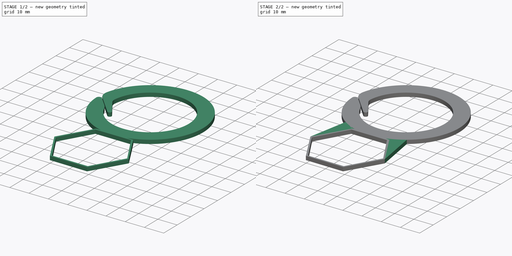
[diagram: build sequence overview — one tinted view per stage of 2, left to right]
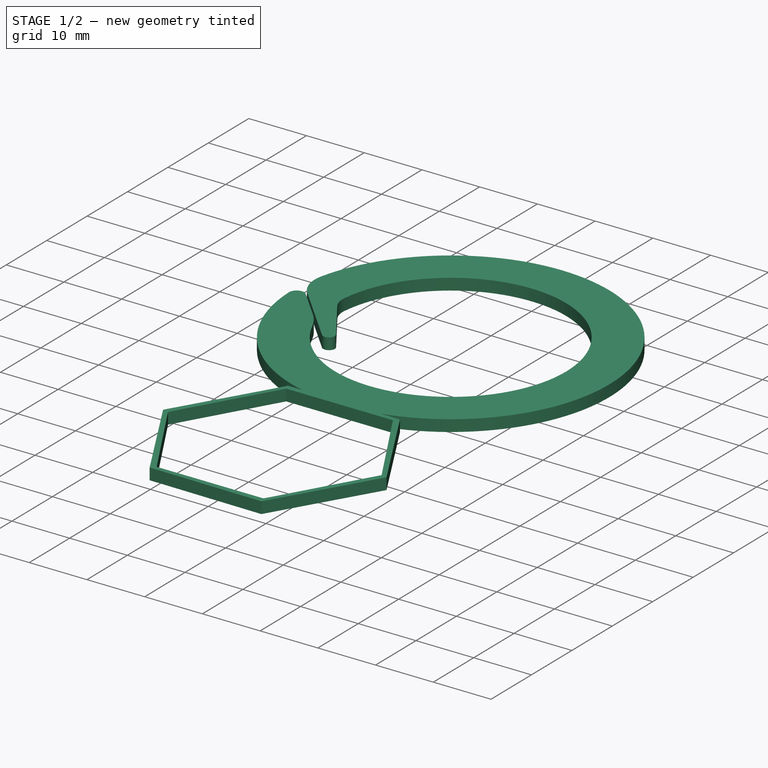
[diagram: stage 1 of 2 — iso view after this stage's code; geometry added in this stage tinted green]
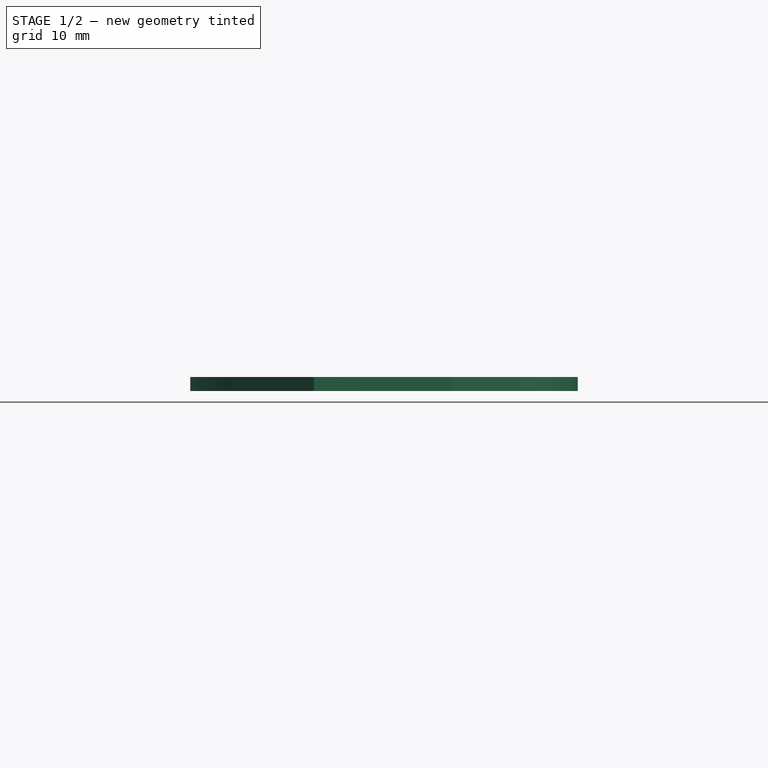
[diagram: stage 1 of 2 — front view after this stage's code; geometry added in this stage tinted green]
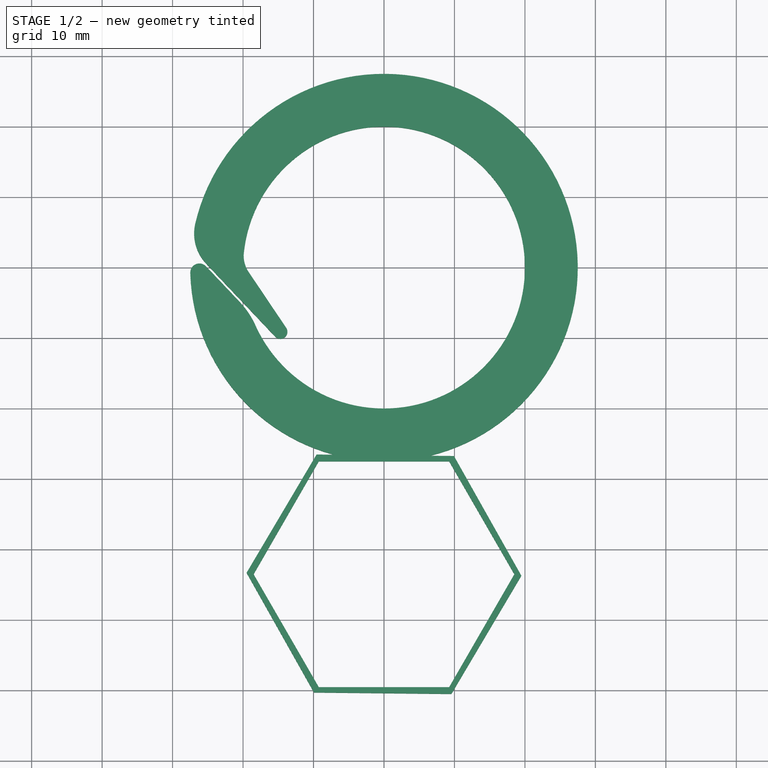
[diagram: stage 1 of 2 — top view after this stage's code; geometry added in this stage tinted green]
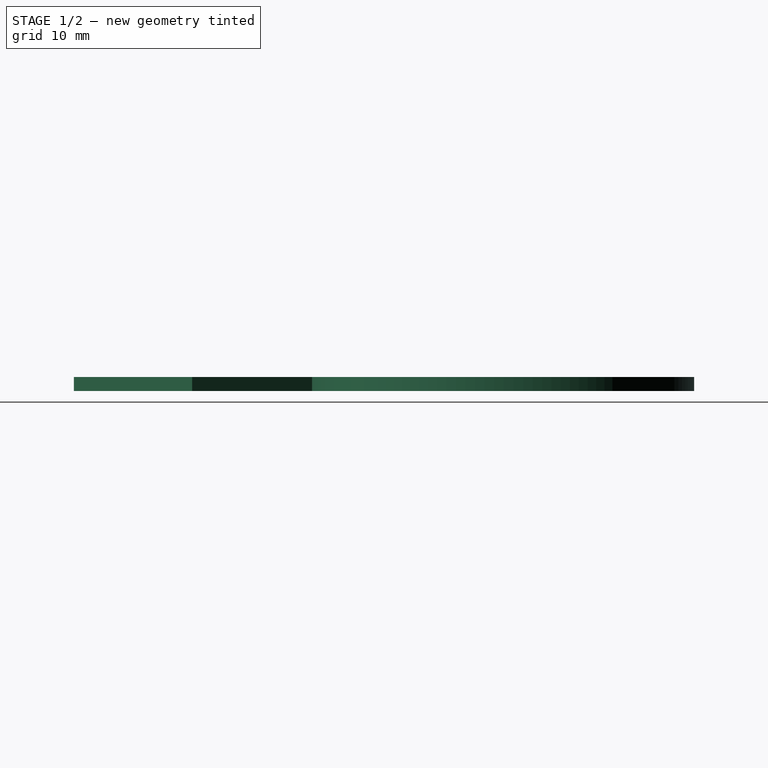
[diagram: stage 1 of 2 — right view after this stage's code; geometry added in this stage tinted green]
FCSTD DOCUMENT  (FreeCAD 0.22R38261 (Git))
Label: отцеп наконечник
License: All rights reserved
LicenseURL: https://en.wikipedia.org/wiki/All_rights_reserved
objects: Sketcher::SketchObject×3, PartDesign::Pad×3, PartDesign::Body×1, App::Part×1
note: 13 computed .brp shape members not serialized (recipe doc carries the construction recipe); baked Part::Feature solids carry a one-line shape summary decoded from their .brp

FEATURE [Sketcher::SketchObject] Sketch
  AttachmentSupport = -> [XY_Plane001]
  FullyConstrained = false
  MapMode = 5
  sketch-geometry (11):
    g0: ArcOfCircle CenterX=0 CenterY=0 CenterZ=0 NormalX=0 NormalY=0 NormalZ=1 AngleXU=0 Radius=27.5 StartAngle=3.16875 EndAngle=9.19574
    g1: ArcOfCircle CenterX=0 CenterY=0 CenterZ=0 NormalX=0 NormalY=0 NormalZ=1 AngleXU=0 Radius=20 StartAngle=3.56311 EndAngle=9.31855
    g2: LineSegment StartX=-20.4406 StartY=-4.90645 StartZ=0 EndX=-25.2498 EndY=0.179962 EndZ=0
    g3: LineSegment StartX=-25.2498 StartY=0.579962 StartZ=0 EndX=-15.4354 EndY=-9.80013 EndZ=0
    g4: LineSegment StartX=-13.8736 StartY=-8.55085 StartZ=0 EndX=-19.2095 EndY=-0.614914 EndZ=0
    g5: ArcOfCircle CenterX=-14.7063 CenterY=-9.11074 CenterZ=0 NormalX=0 NormalY=0 NormalZ=1 AngleXU=0 Radius=1.00343 StartAngle=3.89899 EndAngle=6.87513
    g6: GeomPoint X=-7.12073 Y=-18.5941 Z=0
    g7: ArcOfCircle CenterX=-26.1927 CenterY=-0.711555 CenterZ=0 NormalX=0 NormalY=0 NormalZ=1 AngleXU=0 Radius=1.29764 StartAngle=0.757393 EndAngle=3.16875
    g8: ArcOfCircle CenterX=-20.7475 CenterY=4.83691 CenterZ=0 NormalX=0 NormalY=0 NormalZ=1 AngleXU=0 Radius=6.19616 StartAngle=2.91255 EndAngle=3.89899
    g9: ArcOfCircle CenterX=-15.7908 CenterY=1.68379 CenterZ=0 NormalX=0 NormalY=0 NormalZ=1 AngleXU=0 Radius=4.11971 StartAngle=3.03536 EndAngle=3.73354
    g10: ArcOfCircle CenterX=-29.0083 CenterY=-13.0072 CenterZ=0 NormalX=0 NormalY=0 NormalZ=1 AngleXU=0 Radius=11.791 StartAngle=0.42152 EndAngle=0.757393
  constraints (22):
    c: Coincident(g1,g-1)
    c: Coincident(g0,g1)
    c: Diameter(g0) = 55
    c: Diameter(g1) = 40  'rvnutr'
    c: PointOnObject(g6,g3)
    c: PointOnObject(g6,g4)
    c: Tangent(g3,g5) = -1.5708
    c: Tangent(g4,g5) = -1.5708
    c: Tangent(g2,g7) = -1.5708
    c: Tangent(g0,g7) = -1.5708
    c: Tangent(g3,g8) = -1.5708
    c: Tangent(g0,g8) = -1.5708
    c: Distance(g2,g3) = 0.4
    c: Parallel(g2,g3)
    c: Vertical(g2,g3)
    c: Tangent(g4,g9) = 1.5708
    c: Tangent(g1,g9) = -1.5708
    c: Tangent(g2,g10) = -1.5708
    c: Tangent(g1,g10) = 1.5708
    c: Distance(g3,g4) = 2
    c: Distance(g2) = 7
    c: Distance(g2,g3) = 7
FEATURE [PartDesign::Pad] Pad
  Direction = (0,0,1)
  Length = 2
  Length2 = 10
  Profile = -> Sketch
  ReferenceAxis = -> Sketch [N_Axis]
  Suppressed = false
  Type = 0
FEATURE [Sketcher::SketchObject] Sketch001
  AttachmentSupport = -> [XY_Plane001]
  ExternalGeometry = -> [Pad]
  FullyConstrained = false
  MapMode = 5
  sketch-geometry (15):
    g0: LineSegment StartX=18.5 StartY=-43.5215 StartZ=0 EndX=9.25 EndY=-27.5 EndZ=0
    g1: LineSegment StartX=9.25 StartY=-27.5 StartZ=0 EndX=-9.25 EndY=-27.5 EndZ=0
    g2: LineSegment StartX=-9.25 StartY=-27.5 StartZ=0 EndX=-18.5 EndY=-43.5215 EndZ=0
    g3: LineSegment StartX=-18.5 StartY=-43.5215 StartZ=0 EndX=-9.25 EndY=-59.5429 EndZ=0
    g4: LineSegment StartX=-9.25 StartY=-59.5429 StartZ=0 EndX=9.25 EndY=-59.5429 EndZ=0
    g5: LineSegment StartX=9.25 StartY=-59.5429 StartZ=0 EndX=18.5 EndY=-43.5215 EndZ=0
    g6: Circle CenterX=-8e-16 CenterY=-43.5215 CenterZ=0 NormalX=0 NormalY=0 NormalZ=1 AngleXU=0 Radius=18.5
    g7: GeomPoint X=0 Y=-27.5 Z=0
    g8: LineSegment StartX=19.4989 StartY=-43.7312 StartZ=0 EndX=9.93105 EndY=-26.7398 EndZ=0
    g9: LineSegment StartX=9.93105 StartY=-26.7398 StartZ=0 EndX=-9.56782 EndY=-26.5301 EndZ=0
    g10: LineSegment StartX=-9.56782 StartY=-26.5301 StartZ=0 EndX=-19.4989 EndY=-43.3118 EndZ=0
    g11: LineSegment StartX=-19.4989 StartY=-43.3118 StartZ=0 EndX=-9.93105 EndY=-60.3031 EndZ=0
    g12: LineSegment StartX=-9.93105 StartY=-60.3031 StartZ=0 EndX=9.56782 EndY=-60.5128 EndZ=0
    g13: LineSegment StartX=9.56782 StartY=-60.5128 StartZ=0 EndX=19.4989 EndY=-43.7312 EndZ=0
    g14: Circle CenterX=-8e-16 CenterY=-43.5215 CenterZ=0 NormalX=0 NormalY=0 NormalZ=1 AngleXU=0 Radius=19.5
  constraints (33):
    c: Coincident(g0,g1)
    c: Coincident(g1,g2)
    c: Coincident(g2,g3)
    c: Coincident(g3,g4)
    c: Coincident(g4,g5)
    c: Coincident(g5,g0)
    c: Equal(g0, g1-g5) x5
    c: PointOnObject(g0,g6)
    c: PointOnObject(g1,g6)
    c: PointOnObject(g2,g6)
    c: PointOnObject(g3,g6)
    c: PointOnObject(g4,g6)
    c: PointOnObject(g5,g6)
    c: Horizontal(g1)
    c: PointOnObject(g7,g-3)
    c: PointOnObject(g7,g-2)
    c: Coincident(g8,g9)
    c: Coincident(g9,g10)
    c: Coincident(g10,g11)
    c: Coincident(g11,g12)
    c: Coincident(g12,g13)
    c: Coincident(g13,g8)
    c: Equal(g8, g9-g13) x5
    c: PointOnObject(g8,g14)
    c: PointOnObject(g9,g14)
    c: PointOnObject(g10,g14)
    c: PointOnObject(g11,g14)
    c: PointOnObject(g12,g14)
    c: PointOnObject(g13,g14)
    c: Coincident(g14,g6)
    c: Symmetric(g1,g0,g7)
    c: Diameter(g6) = 37
    c: Diameter(g14) = 39
FEATURE [PartDesign::Pad] Pad001
  BaseFeature = -> Pad
  Direction = (0,0,1)
  Length = 2
  Length2 = 10
  Profile = -> Sketch001
  ReferenceAxis = -> Sketch001 [N_Axis]
  Suppressed = false
  Type = 0
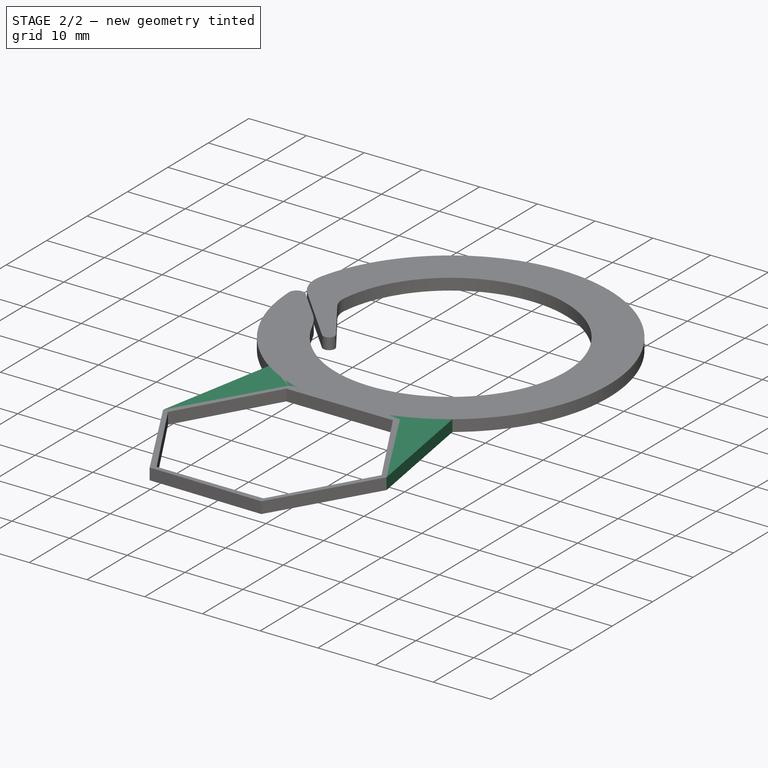
[diagram: stage 2 of 2 — iso view after this stage's code; geometry added in this stage tinted green]
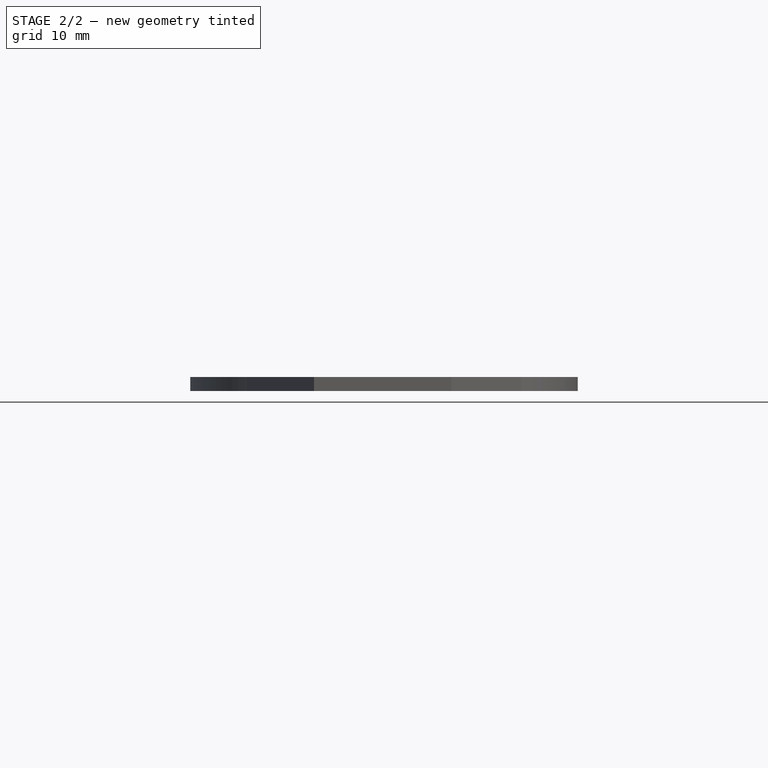
[diagram: stage 2 of 2 — front view after this stage's code; geometry added in this stage tinted green]
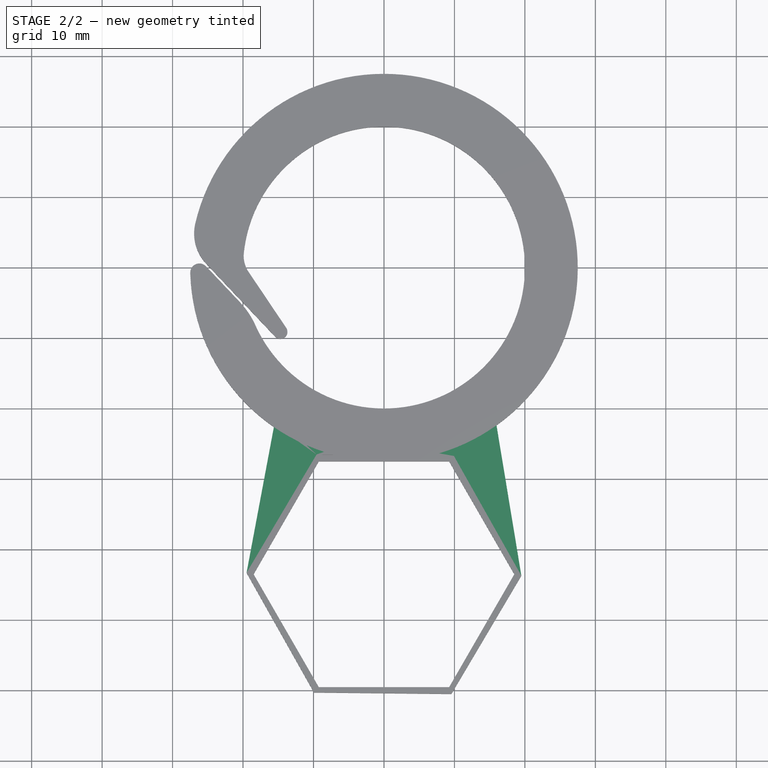
[diagram: stage 2 of 2 — top view after this stage's code; geometry added in this stage tinted green]
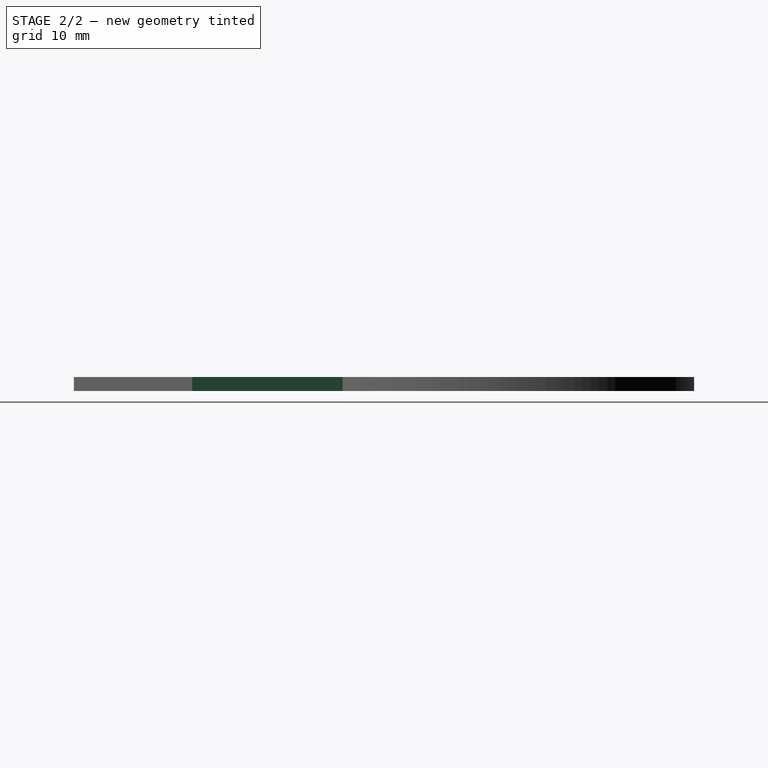
[diagram: stage 2 of 2 — right view after this stage's code; geometry added in this stage tinted green]
FEATURE [Sketcher::SketchObject] Sketch002
  AttachmentSupport = -> [XY_Plane001]
  ExternalGeometry = -> [Pad001]
  FullyConstrained = false
  MapMode = 5
  sketch-geometry (8):
    g0: LineSegment StartX=-15.6199 StartY=-22.6168 StartZ=0 EndX=-19.4989 EndY=-43.3118 EndZ=0
    g1: LineSegment StartX=19.4989 StartY=-43.7312 StartZ=0 EndX=15.9715 EndY=-22.3866 EndZ=0
    g2: LineSegment StartX=15.9715 StartY=-22.3866 StartZ=0 EndX=6.56998 EndY=-26.7037 EndZ=0
    g3: LineSegment StartX=6.56998 StartY=-26.7037 StartZ=0 EndX=9.93105 EndY=-26.7398 EndZ=0
    g4: LineSegment StartX=9.93105 StartY=-26.7398 StartZ=0 EndX=19.4989 EndY=-43.7312 EndZ=0
    g5: LineSegment StartX=-19.4989 StartY=-43.3118 StartZ=0 EndX=-9.56782 EndY=-26.5301 EndZ=0
    g6: LineSegment StartX=-9.56782 StartY=-26.5301 StartZ=0 EndX=-6.93738 EndY=-26.5301 EndZ=0
    g7: LineSegment StartX=-15.6199 StartY=-22.6168 StartZ=0 EndX=-6.93738 EndY=-26.5301 EndZ=0
  constraints (17):
    c: Coincident(g0,g-8)
    c: Coincident(g1,g-9)
    c: PointOnObject(g1,g-5)
    c: Coincident(g2,g1)
    c: Coincident(g2,g-5)
    c: Coincident(g3,g2)
    c: Coincident(g3,g-9)
    c: Coincident(g4,g3)
    c: Coincident(g4,g1)
    c: Coincident(g5,g0)
    c: Coincident(g5,g-8)
    c: Coincident(g6,g5)
    c: Horizontal(g6)
    c: Coincident(g7,g0)
    c: Coincident(g7,g6)
    c: Angle(g5,g0) = 0.349066
    c: Angle(g1,g4) = 0.349066
FEATURE [PartDesign::Pad] Pad002
  BaseFeature = -> Pad001
  Direction = (0,0,1)
  Length = 2
  Length2 = 10
  Profile = -> Sketch002
  ReferenceAxis = -> Sketch002 [N_Axis]
  Suppressed = false
  Type = 0
FEATURE [PartDesign::Body] Body
  AllowCompound = false
  Group = -> [Sketch,Pad,Sketch001,Pad001,Sketch002,Pad002]
  Origin = -> Origin001
  Tip = -> Pad002
FEATURE [App::Part] Part
  Group = -> [Body]
  Origin = -> Origin
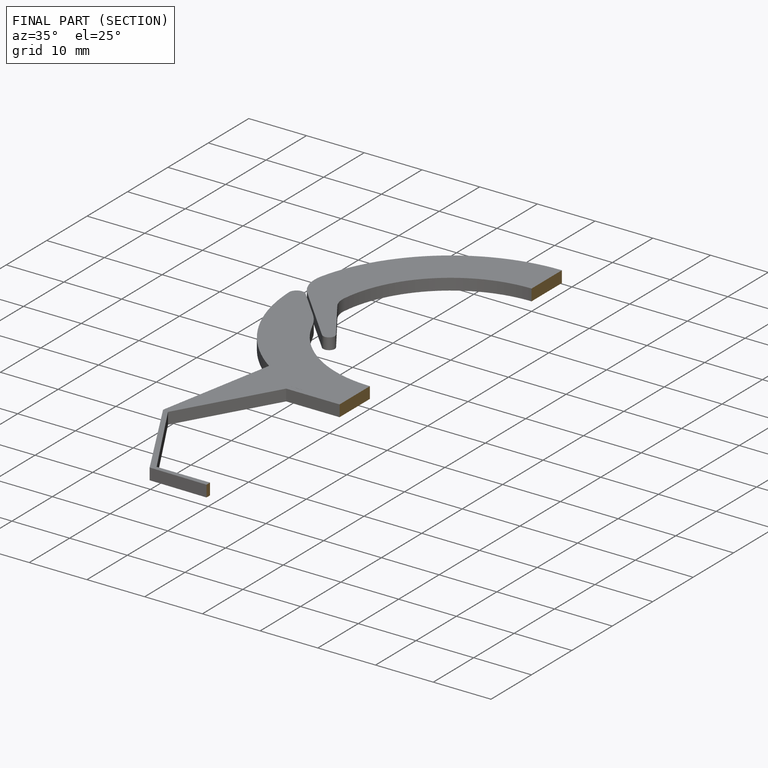
[diagram: finished part — half-section view (interior)]
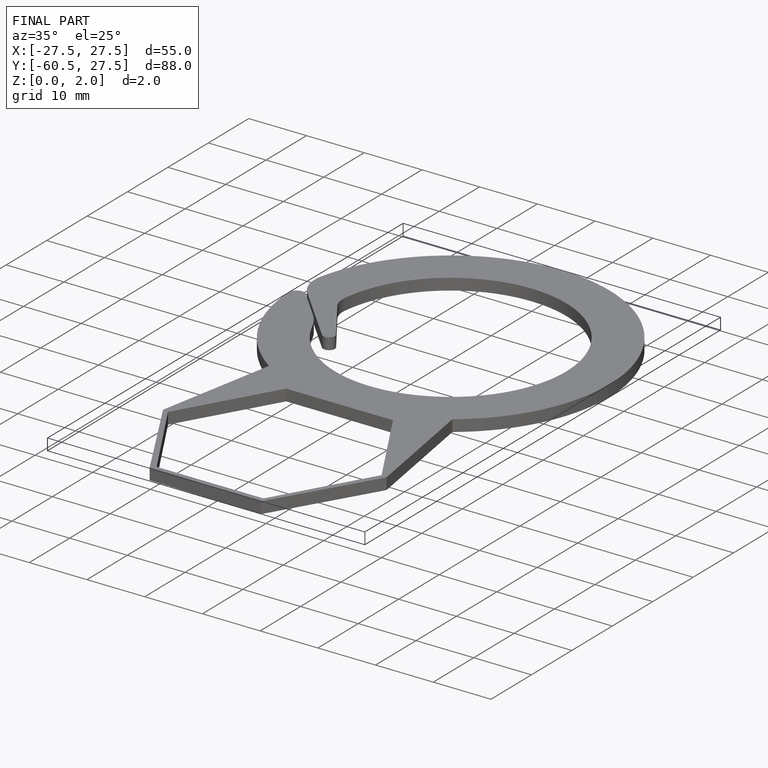
[diagram: finished part — iso view with bounding-box wireframe]
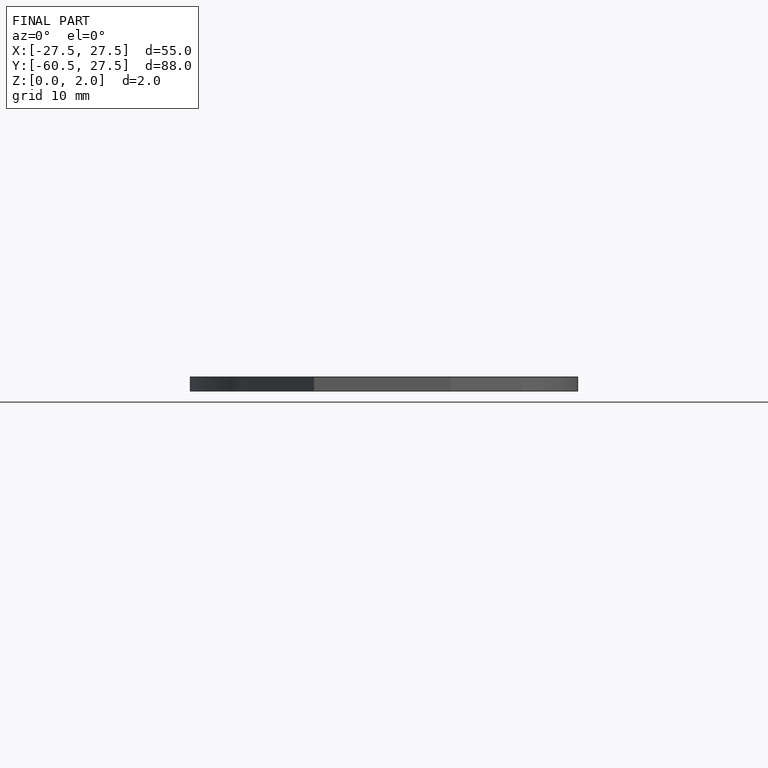
[diagram: finished part — front view with bounding-box wireframe]
